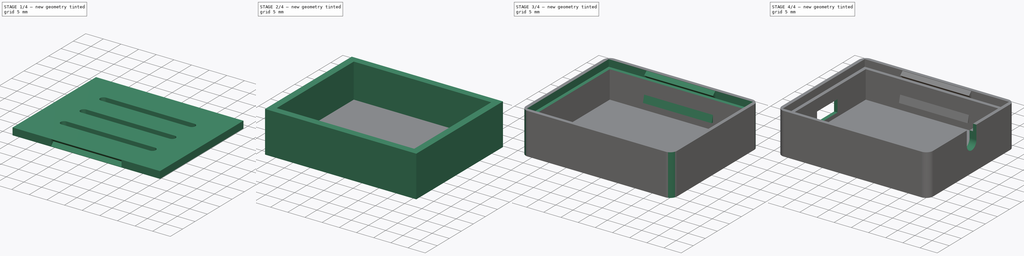
[diagram: build sequence overview — one tinted view per stage of 4, left to right]
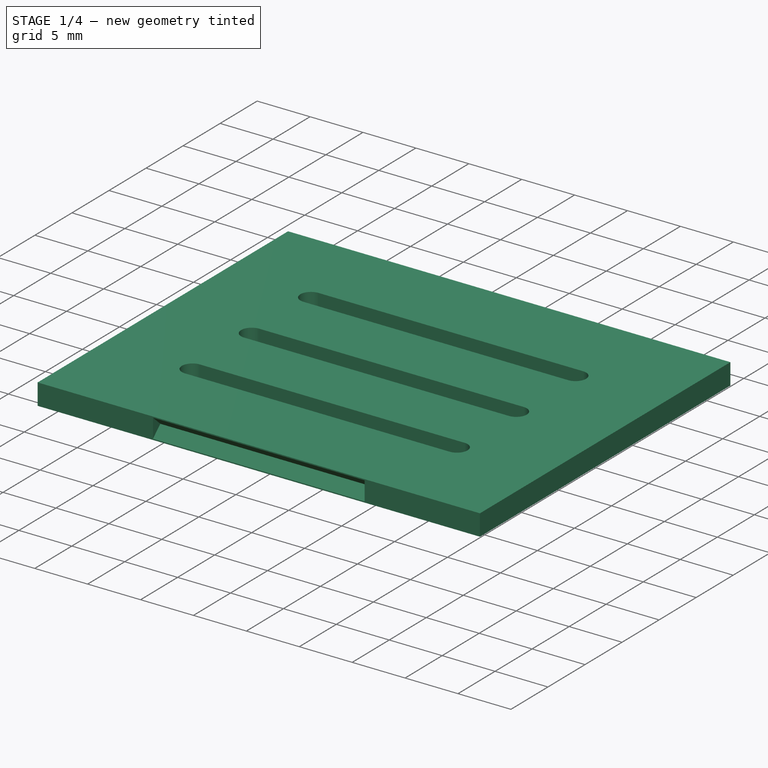
[diagram: stage 1 of 4 — iso view after this stage's code; geometry added in this stage tinted green]
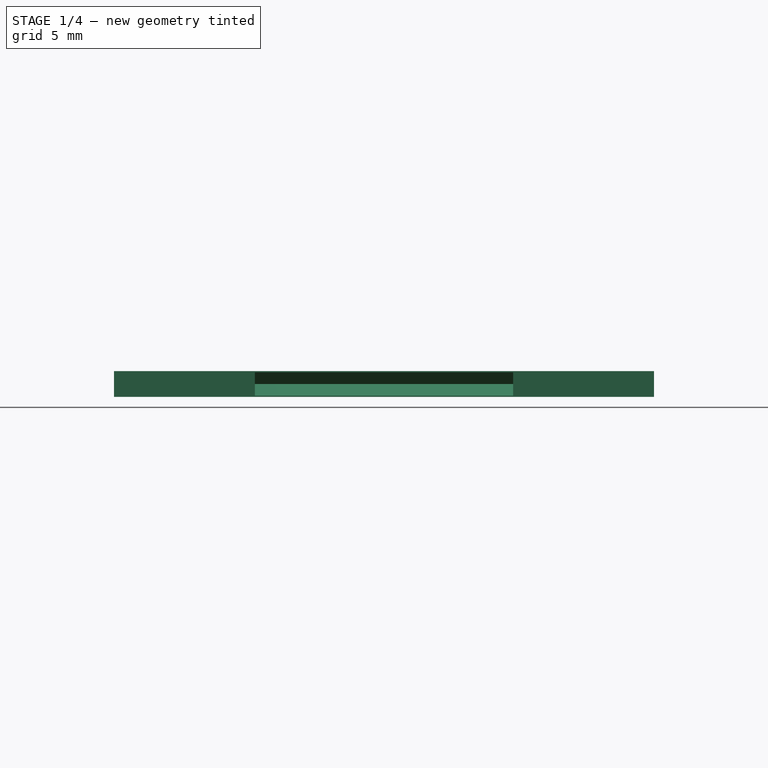
[diagram: stage 1 of 4 — front view after this stage's code; geometry added in this stage tinted green]
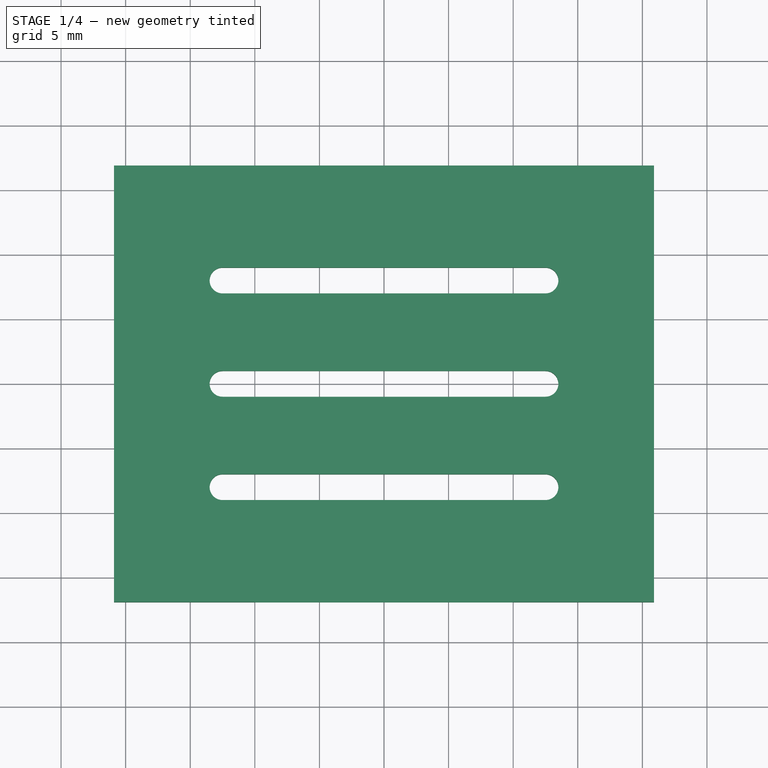
[diagram: stage 1 of 4 — top view after this stage's code; geometry added in this stage tinted green]
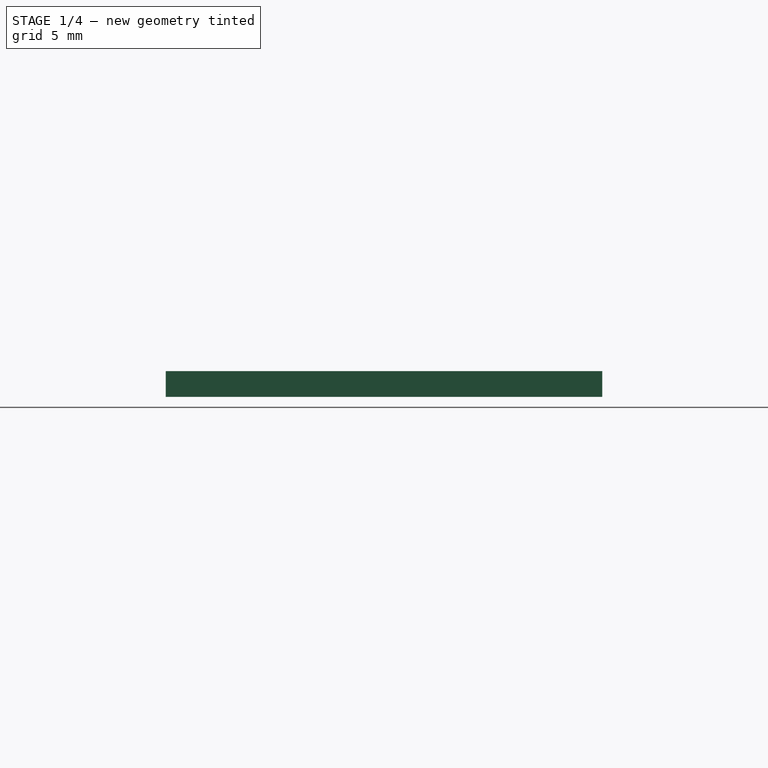
[diagram: stage 1 of 4 — right view after this stage's code; geometry added in this stage tinted green]
FCSTD DOCUMENT  (FreeCAD 1.0R38806 (Git))
Label: Wemos32
License: All rights reserved
LicenseURL: https://en.wikipedia.org/wiki/All_rights_reserved
objects: Sketcher::SketchObject×11, PartDesign::Pocket×6, PartDesign::Pad×5, PartDesign::Body×2, Spreadsheet::Sheet×1, PartDesign::Thickness×1, PartDesign::Fillet×1
note: 63 computed .brp shape members not serialized (recipe doc carries the construction recipe); baked Part::Feature solids carry a one-line shape summary decoded from their .brp

FEATURE [PartDesign::Body] Body
  AllowCompound = false
  Group = -> [Sketch,Pad,Thickness,Fillet,Sketch001,Pocket,Sketch003,Pad001,Sketch004,Pad002,Sketch005,Pocket001,Sketch006,Pocket002,Sketch007,Pocket003]
  Origin = -> Origin
  Tip = -> Pocket003
FEATURE [Sketcher::SketchObject] Sketch008
  ArcFitTolerance = 1e-06
  AttachmentSupport = -> [XY_Plane001]
  FullyConstrained = true
  MakeInternals = false
  MapMode = 5
  expr: Constraints[10] = Spreadsheet.Breite + Spreadsheet.Wand - Spreadsheet.Spiel
  expr: Constraints[9] = Spreadsheet.Laenge + Spreadsheet.Wand - Spreadsheet.Spiel
  sketch-geometry (4):
    g0: LineSegment StartX=-20.9 StartY=16.9 StartZ=0 EndX=-20.9 EndY=-16.9 EndZ=0
    g1: LineSegment StartX=-20.9 StartY=-16.9 StartZ=0 EndX=20.9 EndY=-16.9 EndZ=0
    g2: LineSegment StartX=20.9 StartY=-16.9 StartZ=0 EndX=20.9 EndY=16.9 EndZ=0
    g3: LineSegment StartX=20.9 StartY=16.9 StartZ=0 EndX=-20.9 EndY=16.9 EndZ=0
  constraints (11):
    c: Coincident(g0,g1)
    c: Coincident(g1,g2)
    c: Coincident(g2,g3)
    c: Coincident(g3,g0)
    c: Vertical(g0)
    c: Vertical(g2)
    c: Horizontal(g1)
    c: Horizontal(g3)
    c: Symmetric(g2,g0,g-1)
    c: DistanceX(g3,g3) = 41.8
    c: DistanceY(g0,g0) = 33.8
FEATURE [PartDesign::Pad] Pad003
  Direction = (0,0,1)
  Length = 2
  Length2 = 10
  Profile = -> Sketch008
  ReferenceAxis = -> Sketch008 [N_Axis]
  Suppressed = false
  Type = 0
  expr: Length = Spreadsheet.Wand
FEATURE [Sketcher::SketchObject] Sketch009
  ArcFitTolerance = 1e-06
  AttachmentSupport = -> [XY_Plane001]
  FullyConstrained = true
  MakeInternals = false
  MapMode = 5
  expr: Constraints[24] = Spreadsheet.Langloch
  expr: Constraints[25] = Spreadsheet.Breite / 4
  expr: Constraints[6] = Spreadsheet.Kabelloch
  sketch-geometry (12):
    g0: ArcOfCircle CenterX=-12.5 CenterY=-8 CenterZ=0 NormalX=0 NormalY=0 NormalZ=1 AngleXU=0 Radius=1 StartAngle=1.5708 EndAngle=4.71239
    g1: ArcOfCircle CenterX=12.5 CenterY=-8 CenterZ=0 NormalX=0 NormalY=0 NormalZ=1 AngleXU=0 Radius=1 StartAngle=4.71239 EndAngle=7.85398
    g2: LineSegment StartX=-12.5 StartY=-7 StartZ=0 EndX=12.5 EndY=-7 EndZ=0
    g3: LineSegment StartX=-12.5 StartY=-9 StartZ=0 EndX=12.5 EndY=-9 EndZ=0
    g4: ArcOfCircle CenterX=-12.5 CenterY=8 CenterZ=0 NormalX=0 NormalY=0 NormalZ=1 AngleXU=0 Radius=1 StartAngle=1.5708 EndAngle=4.71239
    g5: ArcOfCircle CenterX=12.5 CenterY=8 CenterZ=0 NormalX=0 NormalY=0 NormalZ=1 AngleXU=0 Radius=1 StartAngle=4.71239 EndAngle=7.85398
    g6: LineSegment StartX=-12.5 StartY=9 StartZ=0 EndX=12.5 EndY=9 EndZ=0
    g7: LineSegment StartX=-12.5 StartY=7 StartZ=0 EndX=12.5 EndY=7 EndZ=0
    g8: ArcOfCircle CenterX=-12.5 CenterY=0 CenterZ=0 NormalX=0 NormalY=0 NormalZ=1 AngleXU=0 Radius=1 StartAngle=1.5708 EndAngle=4.71239
    g9: ArcOfCircle CenterX=12.5 CenterY=0 CenterZ=0 NormalX=0 NormalY=0 NormalZ=1 AngleXU=0 Radius=1 StartAngle=4.71239 EndAngle=7.85398
    g10: LineSegment StartX=-12.5 StartY=1 StartZ=0 EndX=12.5 EndY=1 EndZ=0
    g11: LineSegment StartX=-12.5 StartY=-1 StartZ=0 EndX=12.5 EndY=-1 EndZ=0
  constraints (26):
    c: Tangent(g0,g2) = 1.5708
    c: Tangent(g0,g3) = -1.5708
    c: Tangent(g1,g2) = 1.5708
    c: Tangent(g1,g3) = -1.5708
    c: Equal(g0,g1)
    c: Symmetric(g1,g0,g-2)
    c: Diameter(g1) = 2
    c: Tangent(g4,g6) = 1.5708
    c: Tangent(g4,g7) = -1.5708
    c: Tangent(g5,g6) = 1.5708
    c: Tangent(g5,g7) = -1.5708
    c: Equal(g4,g5)
    c: Symmetric(g5,g4,g-2)
    c: Diameter(g5) = 2
    c: Tangent(g8,g10) = 1.5708
    c: Tangent(g8,g11) = -1.5708
    c: Tangent(g9,g10) = 1.5708
    c: Tangent(g9,g11) = -1.5708
    c: Equal(g8,g9)
    c: Symmetric(g9,g8,g-2)
    c: Diameter(g9) = 2
    c: Vertical(g0,g8)
    c: Symmetric(g4,g0,g-1)
    c: Symmetric(g8,g8,g-1)
    c: DistanceX(g4,g5) = 25
    c: DistanceY(g0,g8) = 8
FEATURE [PartDesign::Pocket] Pocket004
  BaseFeature = -> Pad003
  Direction = (0,0,-1)
  Length = 2
  Length2 = 5
  Profile = -> Sketch009
  ReferenceAxis = -> Sketch009 [N_Axis]
  Reversed = true
  Suppressed = false
  Type = 0
  expr: Length = Spreadsheet.Wand
FEATURE [Sketcher::SketchObject] Sketch010
  ArcFitTolerance = 1e-06
  AttachmentSupport = -> [YZ_Plane001]
  FullyConstrained = true
  MakeInternals = false
  MapMode = 5
  Placement = pos=(0,0,0) rot=(0.57735,0.57735,0.57735;2.0944rad)
  expr: Constraints[13] = Spreadsheet.Wand / 2
  expr: Constraints[14] = Spreadsheet.Wand - Spreadsheet.Spiel
  expr: Constraints[15] = Spreadsheet.Wand / 2
  expr: Constraints[16] = Spreadsheet.Breite + Spreadsheet.Wand - Spreadsheet.Spiel
  sketch-geometry (6):
    g0: LineSegment StartX=-16.9 StartY=1.9 StartZ=0 EndX=-16.9 EndY=0.1 EndZ=0
    g1: LineSegment StartX=-16.9 StartY=0.1 StartZ=0 EndX=-15.9 EndY=1 EndZ=0
    g2: LineSegment StartX=-15.9 StartY=1 StartZ=0 EndX=-16.9 EndY=1.9 EndZ=0
    g3: LineSegment StartX=16.9 StartY=1.9 StartZ=0 EndX=16.9 EndY=0.1 EndZ=0
    g4: LineSegment StartX=16.9 StartY=0.1 StartZ=0 EndX=15.9 EndY=1 EndZ=0
    g5: LineSegment StartX=15.9 StartY=1 StartZ=0 EndX=16.9 EndY=1.9 EndZ=0
  constraints (17):
    c: Vertical(g0)
    c: Coincident(g0,g1)
    c: Coincident(g1,g2)
    c: Coincident(g2,g0)
    c: Vertical(g3)
    c: Coincident(g3,g4)
    c: Coincident(g4,g5)
    c: Coincident(g5,g3)
    c: Equal(g2,g1)
    c: Equal(g4,g5)
    c: Equal(g0,g3)
    c: Equal(g5,g2)
    c: Symmetric(g4,g1,g-2)
    c: DistanceX(g0,g1) = 1
    c: DistanceY(g0,g0) = 1.8
    c: DistanceY(g-1,g1) = 1
    c: DistanceX(g0,g3) = 33.8
FEATURE [PartDesign::Pocket] Pocket005
  BaseFeature = -> Pocket004
  Direction = (-1,0,0)
  Length = 20
  Length2 = 5
  Midplane = true
  Profile = -> Sketch010
  ReferenceAxis = -> Sketch010 [N_Axis]
  Suppressed = false
  Type = 0
  expr: Length = Spreadsheet.Keil
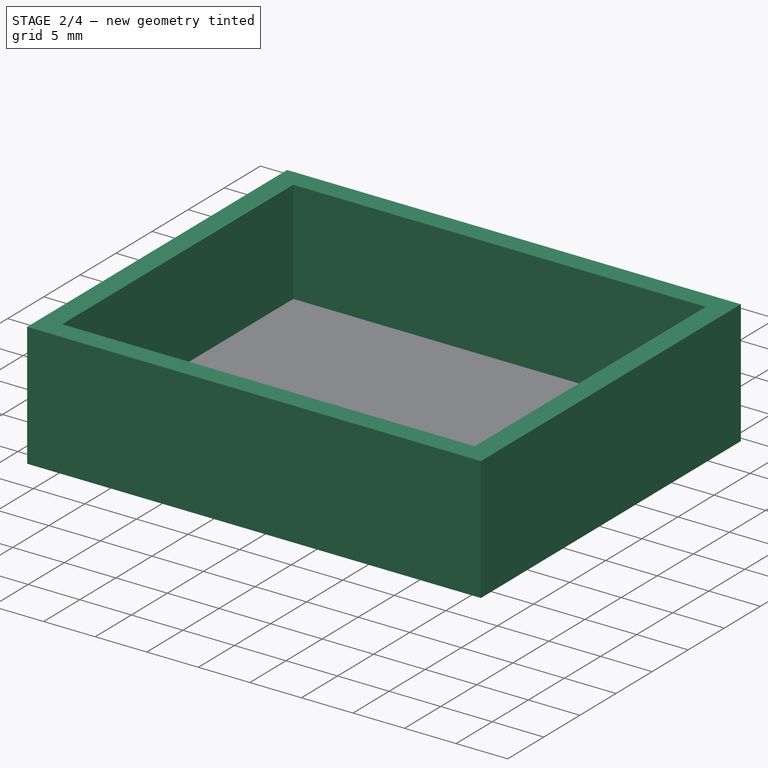
[diagram: stage 2 of 4 — iso view after this stage's code; geometry added in this stage tinted green]
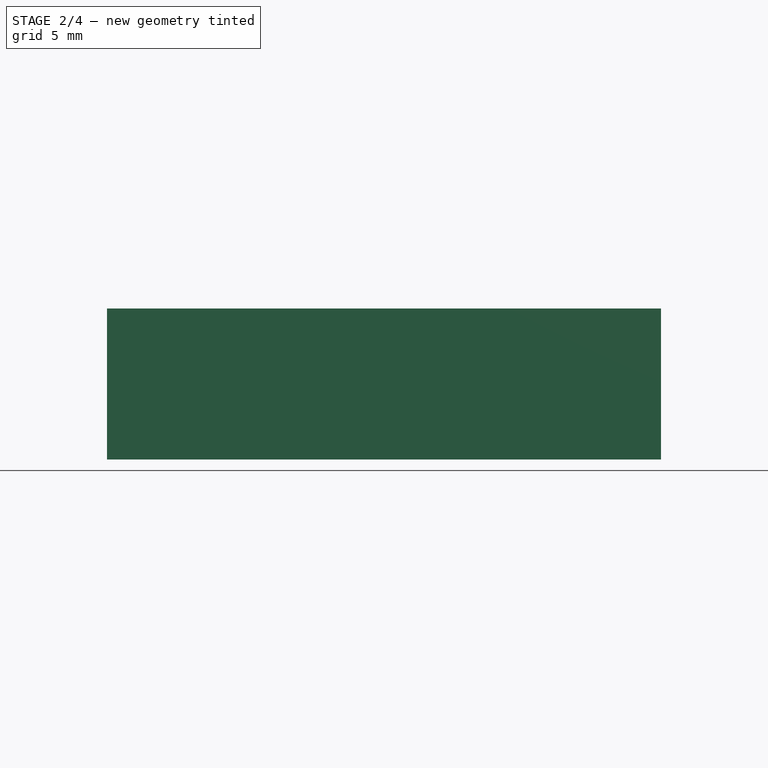
[diagram: stage 2 of 4 — front view after this stage's code; geometry added in this stage tinted green]
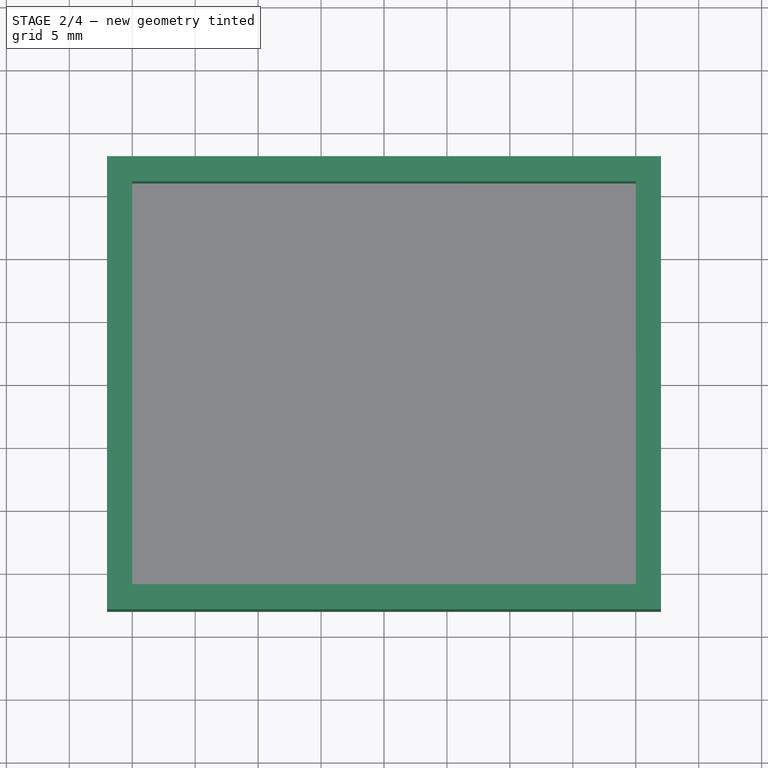
[diagram: stage 2 of 4 — top view after this stage's code; geometry added in this stage tinted green]
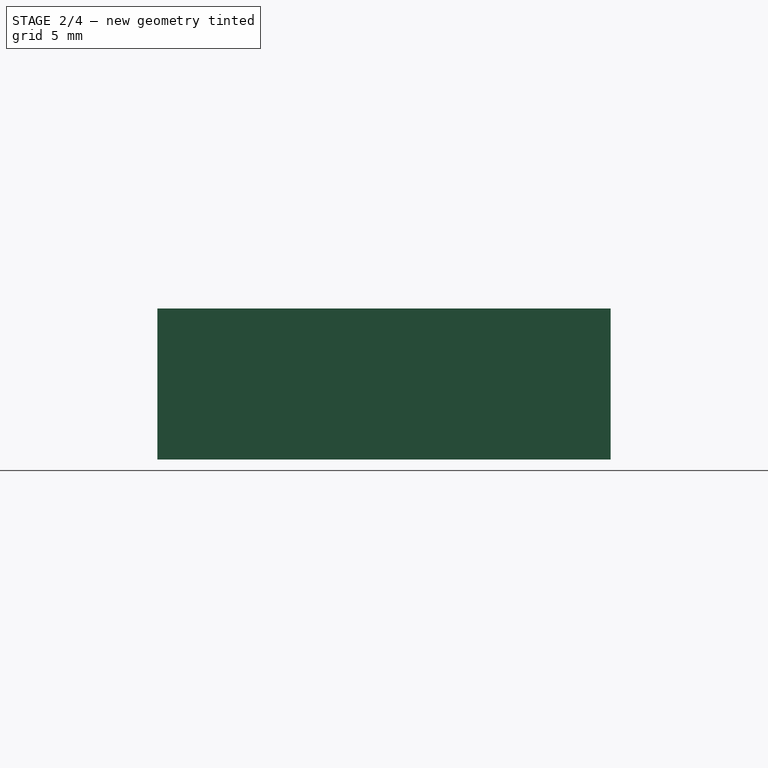
[diagram: stage 2 of 4 — right view after this stage's code; geometry added in this stage tinted green]
FEATURE [Sketcher::SketchObject] Sketch
  ArcFitTolerance = 1e-06
  AttachmentSupport = -> [XY_Plane]
  FullyConstrained = true
  MakeInternals = false
  MapMode = 5
  expr: Constraints[10] = Spreadsheet.Breite + Spreadsheet.Wand * 2
  expr: Constraints[9] = Spreadsheet.Laenge + Spreadsheet.Wand * 2
  sketch-geometry (4):
    g0: LineSegment StartX=-22 StartY=18 StartZ=0 EndX=-22 EndY=-18 EndZ=0
    g1: LineSegment StartX=-22 StartY=-18 StartZ=0 EndX=22 EndY=-18 EndZ=0
    g2: LineSegment StartX=22 StartY=-18 StartZ=0 EndX=22 EndY=18 EndZ=0
    g3: LineSegment StartX=22 StartY=18 StartZ=0 EndX=-22 EndY=18 EndZ=0
  constraints (11):
    c: Coincident(g0,g1)
    c: Coincident(g1,g2)
    c: Coincident(g2,g3)
    c: Coincident(g3,g0)
    c: Vertical(g0)
    c: Vertical(g2)
    c: Horizontal(g1)
    c: Horizontal(g3)
    c: Symmetric(g2,g0,g-1)
    c: DistanceX(g3,g3) = 44
    c: DistanceY(g0,g0) = 36
FEATURE [Spreadsheet::Sheet] Spreadsheet
  cells = A1='Laenge; B1(Laenge)==40 mm; A2='Breite; B2(Breite)==32 mm; A3='Hoehe; B3(Hoehe)==12 mm; A4='Wand; B4(Wand)==2 mm; A5='Rundung; B5(Rundung)==2 mm; A6='UsbH; B6(UsbH)==3.5 mm; A7='UsbL; B7(UsbL)==8.5 mm; A8='Platine; B8(Platine)==1 mm; A9='Kabelloch; B9(Kabelloch)==2 mm; A10='Spiel; B10(Spiel)==0.2 mm; A11='Keil; B11(Keil)==20 mm; A12='KabelAbstand; B12(KabelAbstand)==2 mm; A13='Langloch; B13(Langloch)==25 mm
FEATURE [PartDesign::Pad] Pad
  Direction = (0,0,1)
  Length = 12
  Length2 = 10
  Profile = -> Sketch
  ReferenceAxis = -> Sketch [N_Axis]
  Refine = true
  Suppressed = false
  Type = 0
  expr: Length = Spreadsheet.Hoehe
FEATURE [PartDesign::Thickness] Thickness
  Base = -> Pad [Face6]
  BaseFeature = -> Pad
  Intersection = false
  Join = 0
  Mode = 0
  Refine = true
  Reversed = true
  SupportTransform = false
  Suppressed = false
  Value = 2
  expr: Value = Spreadsheet.Wand
FEATURE [Sketcher::SketchObject] Sketch011
  ArcFitTolerance = 1e-06
  AttachmentSupport = -> [XY_Plane001]
  FullyConstrained = true
  MakeInternals = false
  MapMode = 5
  expr: Constraints[10] = (Spreadsheet.Laenge + Spreadsheet.Wand - Spreadsheet.Spiel) / 2
  expr: Constraints[8] = Spreadsheet.Kabelloch * 2 - Spreadsheet.Spiel
  expr: Constraints[9] = Spreadsheet.Wand / 2
  sketch-geometry (4):
    g0: LineSegment StartX=20.9 StartY=1.9 StartZ=0 EndX=20.9 EndY=-1.9 EndZ=0
    g1: LineSegment StartX=20.9 StartY=-1.9 StartZ=0 EndX=21.9 EndY=-1.9 EndZ=0
    g2: LineSegment StartX=21.9 StartY=-1.9 StartZ=0 EndX=21.9 EndY=1.9 EndZ=0
    g3: LineSegment StartX=21.9 StartY=1.9 StartZ=0 EndX=20.9 EndY=1.9 EndZ=0
  constraints (11):
    c: Coincident(g0,g1)
    c: Coincident(g1,g2)
    c: Coincident(g2,g3)
    c: Coincident(g3,g0)
    c: Vertical(g2)
    c: Horizontal(g1)
    c: Horizontal(g3)
    c: Symmetric(g0,g0,g-1)
    c: DistanceY(g1,g2) = 3.8
    c: DistanceX(g0,g2) = 1
    c: DistanceX(g-1,g0) = 20.9
FEATURE [PartDesign::Pad] Pad004
  BaseFeature = -> Pocket005
  Direction = (0,0,1)
  Length = 2
  Length2 = 10
  Profile = -> Sketch011
  ReferenceAxis = -> Sketch011 [N_Axis]
  Suppressed = false
  Type = 0
  expr: Length = Spreadsheet.Wand
FEATURE [PartDesign::Body] Body001  label="Deckel"
  AllowCompound = false
  Group = -> [Sketch008,Pad003,Sketch009,Pocket004,Sketch010,Pocket005,Sketch011,Pad004]
  Origin = -> Origin001
  Placement = pos=(0,0,24) rot=(0,0,1;0rad)
  Tip = -> Pad004
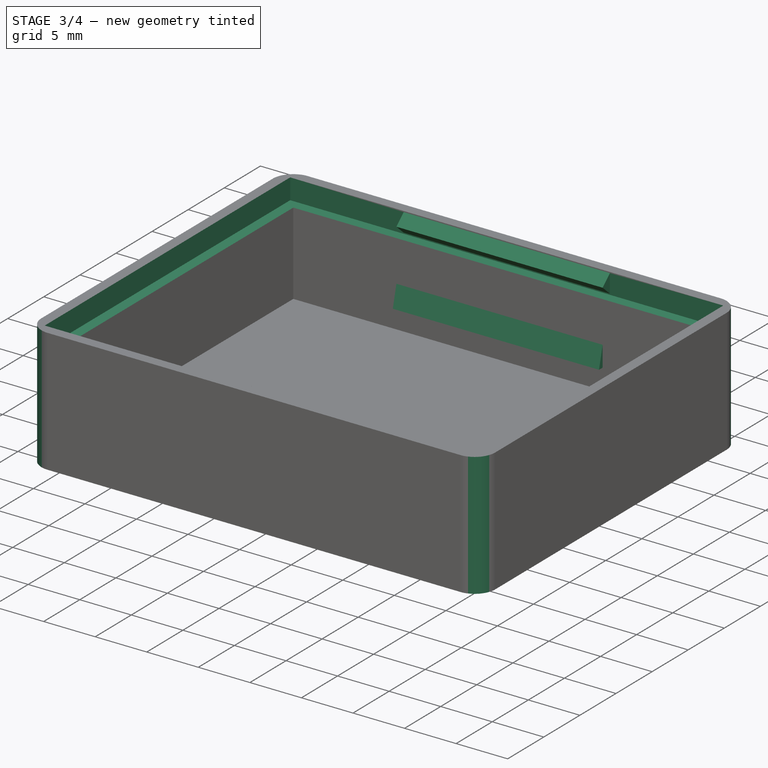
[diagram: stage 3 of 4 — iso view after this stage's code; geometry added in this stage tinted green]
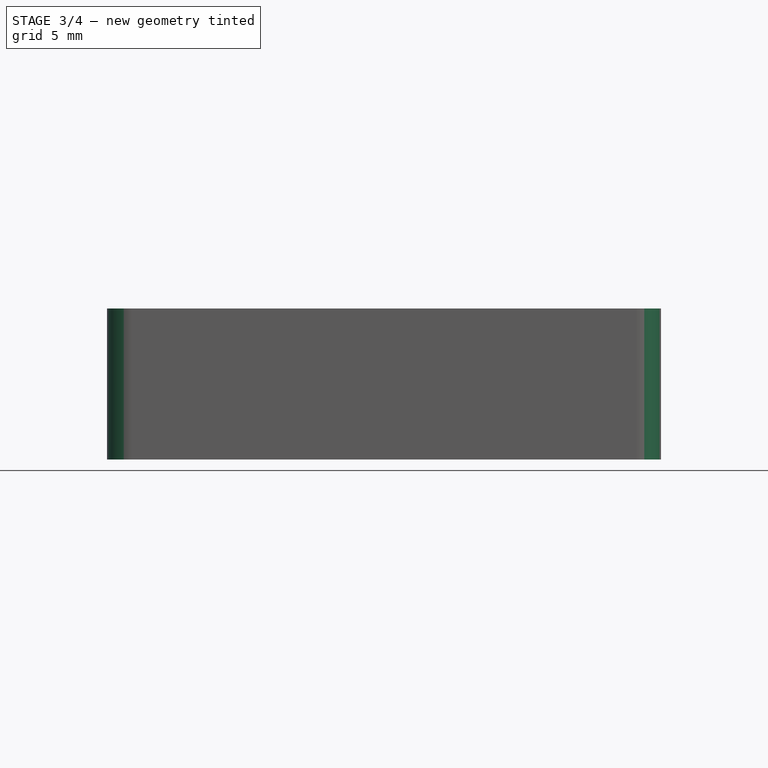
[diagram: stage 3 of 4 — front view after this stage's code; geometry added in this stage tinted green]
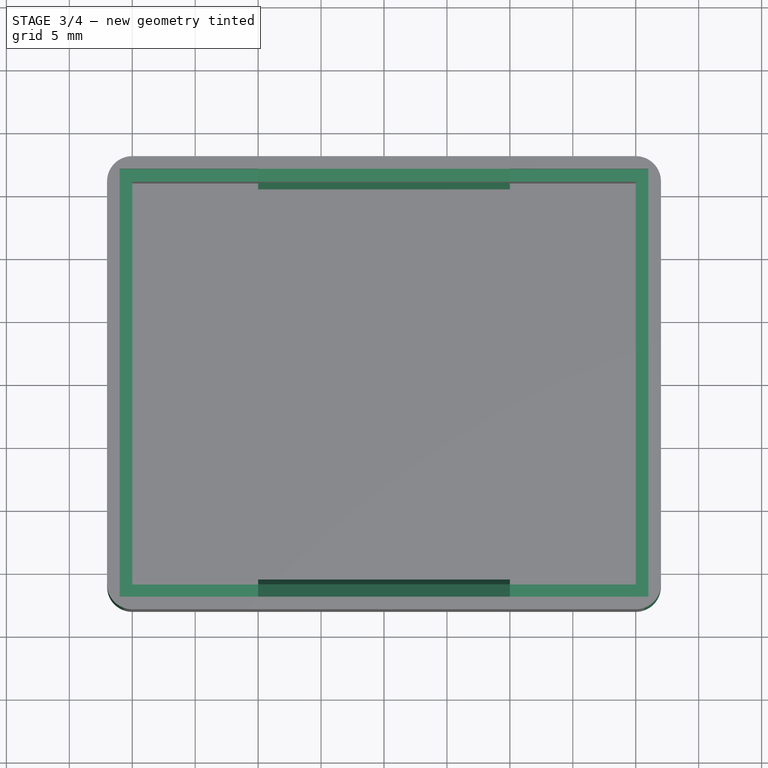
[diagram: stage 3 of 4 — top view after this stage's code; geometry added in this stage tinted green]
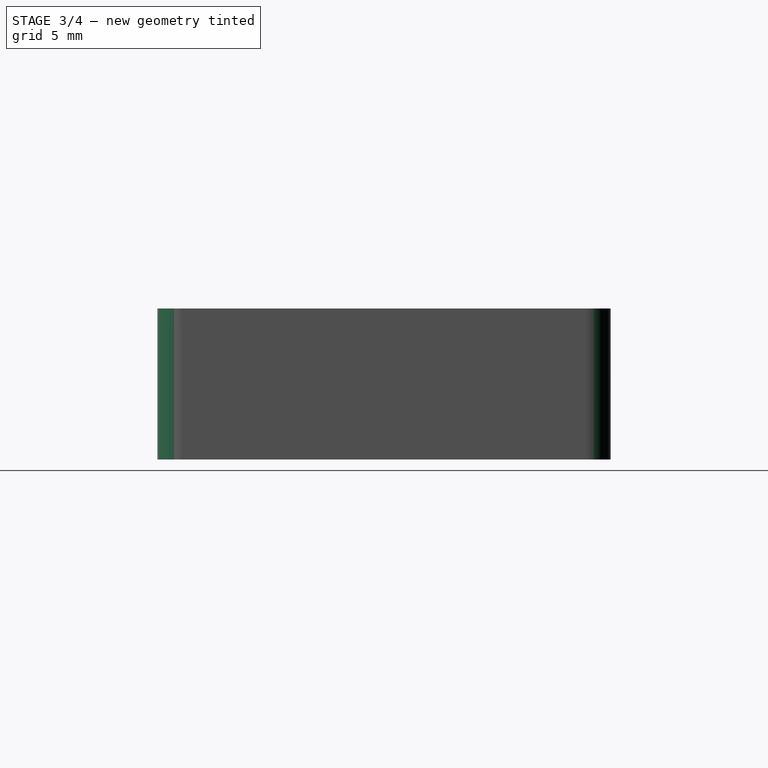
[diagram: stage 3 of 4 — right view after this stage's code; geometry added in this stage tinted green]
FEATURE [PartDesign::Fillet] Fillet
  Base = -> Thickness [Edge1,Edge2,Edge5,Edge8]
  BaseFeature = -> Thickness
  Radius = 2
  Refine = true
  SupportTransform = false
  Suppressed = false
  UseAllEdges = false
  expr: Radius = Spreadsheet.Rundung
FEATURE [Sketcher::SketchObject] Sketch001
  ArcFitTolerance = 1e-06
  AttachmentOffset = pos=(0,0,12) rot=(0,0,1;0rad)
  AttachmentSupport = -> [XY_Plane]
  FullyConstrained = true
  MakeInternals = false
  MapMode = 5
  Placement = pos=(0,0,12) rot=(0,0,1;0rad)
  expr: .AttachmentOffset.Base.z = Spreadsheet.Hoehe
  expr: Constraints[10] = Spreadsheet.Breite + Spreadsheet.Wand
  expr: Constraints[9] = Spreadsheet.Laenge + Spreadsheet.Wand
  sketch-geometry (4):
    g0: LineSegment StartX=-21 StartY=17 StartZ=0 EndX=-21 EndY=-17 EndZ=0
    g1: LineSegment StartX=-21 StartY=-17 StartZ=0 EndX=21 EndY=-17 EndZ=0
    g2: LineSegment StartX=21 StartY=-17 StartZ=0 EndX=21 EndY=17 EndZ=0
    g3: LineSegment StartX=21 StartY=17 StartZ=0 EndX=-21 EndY=17 EndZ=0
  constraints (11):
    c: Coincident(g0,g1)
    c: Coincident(g1,g2)
    c: Coincident(g2,g3)
    c: Coincident(g3,g0)
    c: Vertical(g0)
    c: Vertical(g2)
    c: Horizontal(g1)
    c: Horizontal(g3)
    c: Symmetric(g2,g0,g-1)
    c: Distance(g3,g3) = 42
    c: DistanceY(g0,g0) = 34
FEATURE [PartDesign::Pocket] Pocket
  BaseFeature = -> Fillet
  Direction = (0,0,-1)
  Length = 2
  Length2 = 5
  Profile = -> Sketch001
  ReferenceAxis = -> Sketch001 [N_Axis]
  Suppressed = false
  Type = 0
  expr: Length = Spreadsheet.Wand
FEATURE [Sketcher::SketchObject] Sketch003
  ArcFitTolerance = 1e-06
  AttachmentSupport = -> [YZ_Plane]
  FullyConstrained = true
  MakeInternals = false
  MapMode = 5
  Placement = pos=(0,0,0) rot=(0.57735,0.57735,0.57735;2.0944rad)
  expr: Constraints[10] = Spreadsheet.Hoehe - Spreadsheet.Spiel / 2
  expr: Constraints[7] = Spreadsheet.Breite + Spreadsheet.Wand
  expr: Constraints[8] = Spreadsheet.Wand - Spreadsheet.Spiel
  expr: Constraints[9] = Spreadsheet.Wand / 2
  sketch-geometry (6):
    g0: LineSegment StartX=-17 StartY=11.9 StartZ=0 EndX=-17 EndY=10.1 EndZ=0
    g1: LineSegment StartX=17 StartY=10.1 StartZ=0 EndX=17 EndY=11.9 EndZ=0
    g2: LineSegment StartX=17 StartY=11.9 StartZ=0 EndX=16 EndY=11 EndZ=0
    g3: LineSegment StartX=16 StartY=11 StartZ=0 EndX=17 EndY=10.1 EndZ=0
    g4: LineSegment StartX=-17 StartY=11.9 StartZ=0 EndX=-16 EndY=11 EndZ=0
    g5: LineSegment StartX=-16 StartY=11 StartZ=0 EndX=-17 EndY=10.1 EndZ=0
  constraints (17):
    c: Vertical(g0)
    c: Vertical(g1)
    c: Coincident(g1,g2)
    c: Coincident(g2,g3)
    c: Coincident(g3,g1)
    c: Equal(g2,g3)
    c: Equal(g1,g0)
    c: DistanceX(g0,g1) = 34
    c: DistanceY(g0,g0) = 1.8
    c: DistanceX(g2,g1) = 1
    c: DistanceY(g-1,g0) = 11.9
    c: Coincident(g4,g0)
    c: Coincident(g5,g4)
    c: Coincident(g5,g0)
    c: Equal(g5,g4)
    c: Equal(g2,g4)
    c: Symmetric(g4,g2,g-2)
FEATURE [PartDesign::Pad] Pad001
  BaseFeature = -> Pocket
  Direction = (1,0,0)
  Length = 20
  Length2 = 10
  Midplane = true
  Profile = -> Sketch003
  ReferenceAxis = -> Sketch003 [N_Axis]
  Suppressed = false
  Type = 0
  expr: Length = Spreadsheet.Keil
FEATURE [Sketcher::SketchObject] Sketch004
  ArcFitTolerance = 1e-06
  AttachmentSupport = -> [YZ_Plane]
  FullyConstrained = true
  MakeInternals = false
  MapMode = 5
  Placement = pos=(0,0,0) rot=(0.57735,0.57735,0.57735;2.0944rad)
  expr: Constraints[12] = Spreadsheet.Wand / 4
  expr: Constraints[13] = Spreadsheet.Wand
  expr: Constraints[15] = Spreadsheet.Wand + Spreadsheet.Platine + Spreadsheet.Spiel * 5
  expr: Constraints[16] = Spreadsheet.Breite
  sketch-geometry (6):
    g0: LineSegment StartX=-16 StartY=6 StartZ=0 EndX=-16 EndY=4 EndZ=0
    g1: LineSegment StartX=-16 StartY=4 StartZ=0 EndX=-15.5 EndY=4 EndZ=0
    g2: LineSegment StartX=-15.5 StartY=4 StartZ=0 EndX=-16 EndY=6 EndZ=0
    g3: LineSegment StartX=16 StartY=6 StartZ=0 EndX=16 EndY=4 EndZ=0
    g4: LineSegment StartX=16 StartY=4 StartZ=0 EndX=15.5 EndY=4 EndZ=0
    g5: LineSegment StartX=15.5 StartY=4 StartZ=0 EndX=16 EndY=6 EndZ=0
  constraints (17):
    c: Vertical(g0)
    c: Coincident(g0,g1)
    c: Horizontal(g1)
    c: Coincident(g1,g2)
    c: Coincident(g2,g0)
    c: Vertical(g3)
    c: Coincident(g3,g4)
    c: Horizontal(g4)
    c: Coincident(g4,g5)
    c: Coincident(g5,g3)
    c: Equal(g0,g3)
    c: Equal(g1,g4)
    c: DistanceX(g1,g1) = 0.5
    c: DistanceY(g0,g0) = 2
    c: Symmetric(g0,g3,g-2)
    c: DistanceY(g-1,g1) = 4
    c: DistanceX(g0,g3) = 32
FEATURE [PartDesign::Pad] Pad002
  BaseFeature = -> Pad001
  Direction = (1,0,0)
  Length = 20
  Length2 = 10
  Midplane = true
  Profile = -> Sketch004
  ReferenceAxis = -> Sketch004 [N_Axis]
  Suppressed = false
  Type = 0
  expr: Length = Spreadsheet.Keil
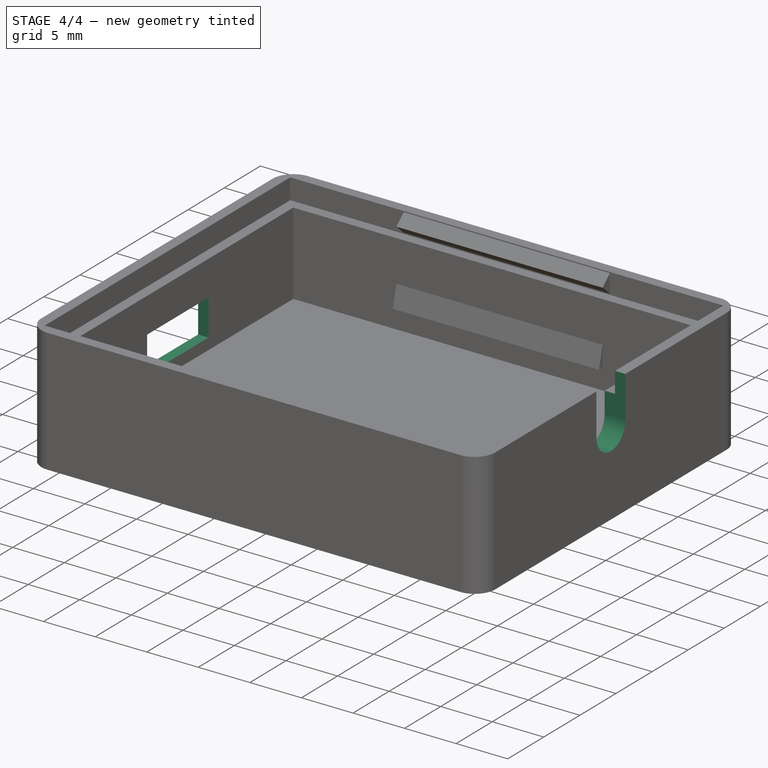
[diagram: stage 4 of 4 — iso view after this stage's code; geometry added in this stage tinted green]
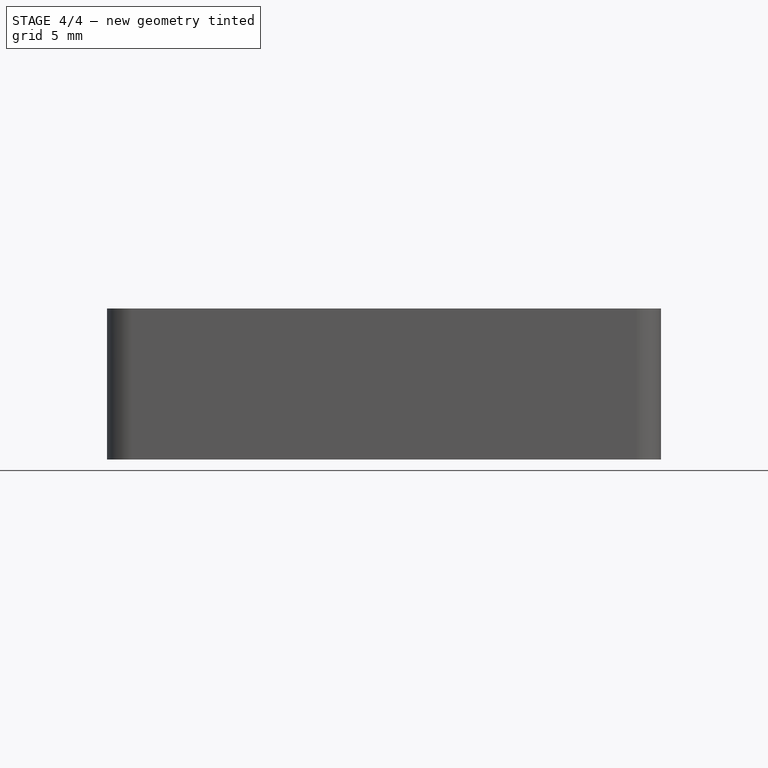
[diagram: stage 4 of 4 — front view after this stage's code; geometry added in this stage tinted green]
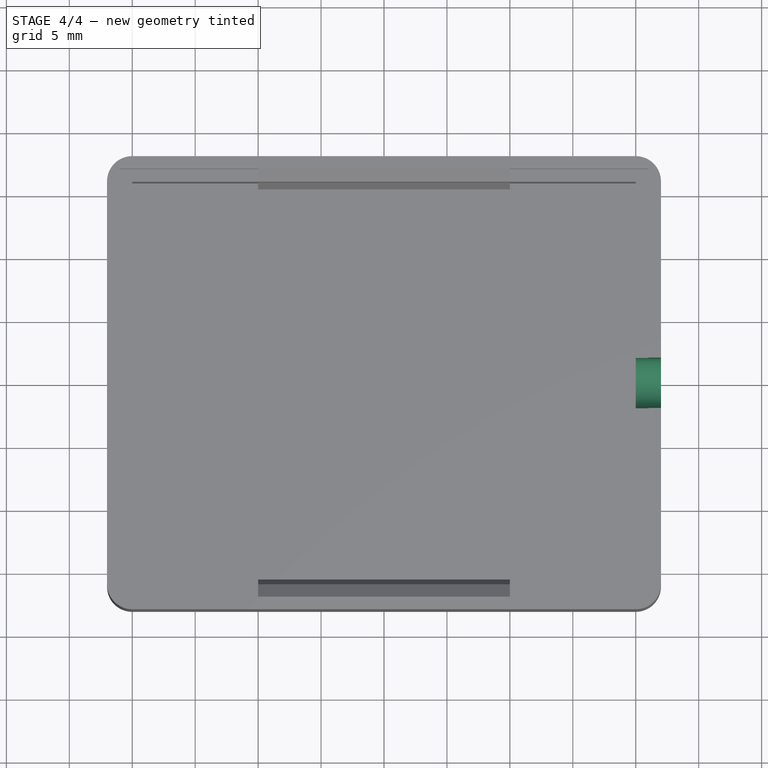
[diagram: stage 4 of 4 — top view after this stage's code; geometry added in this stage tinted green]
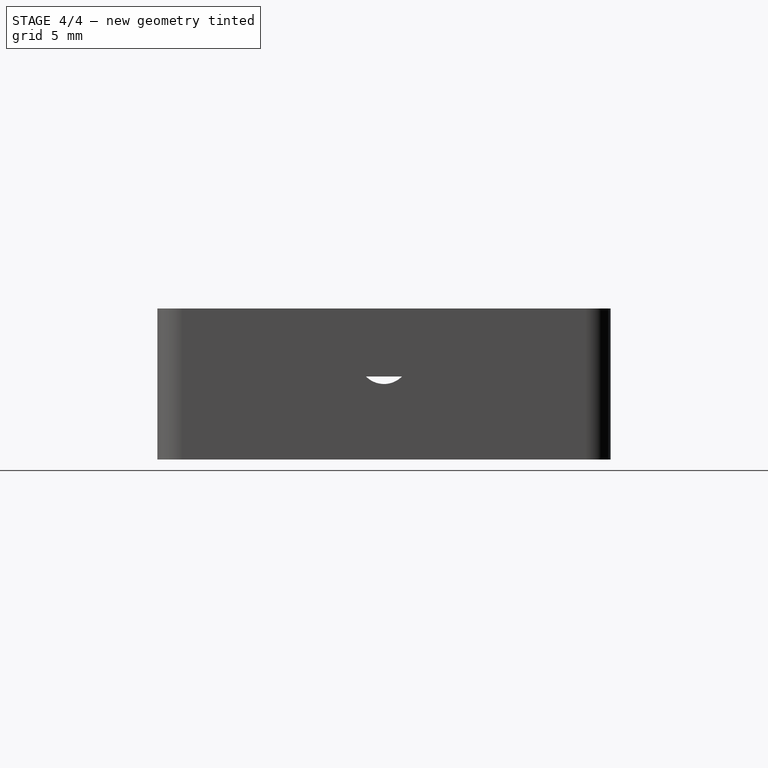
[diagram: stage 4 of 4 — right view after this stage's code; geometry added in this stage tinted green]
FEATURE [Sketcher::SketchObject] Sketch005
  ArcFitTolerance = 1e-06
  AttachmentSupport = -> [Pad002]
  FullyConstrained = true
  MakeInternals = false
  MapMode = 5
  Placement = pos=(-22,0,0) rot=(0.57735,-0.57735,-0.57735;2.0944rad)
  expr: Constraints[10] = Spreadsheet.UsbL
  expr: Constraints[7] = Spreadsheet.Wand + Spreadsheet.Platine + Spreadsheet.Spiel / 2
  expr: Constraints[9] = Spreadsheet.UsbH
  sketch-geometry (4):
    g0: LineSegment StartX=-4.25 StartY=6.6 StartZ=0 EndX=-4.25 EndY=3.1 EndZ=0
    g1: LineSegment StartX=-4.25 StartY=3.1 StartZ=0 EndX=4.25 EndY=3.1 EndZ=0
    g2: LineSegment StartX=4.25 StartY=3.1 StartZ=0 EndX=4.25 EndY=6.6 EndZ=0
    g3: LineSegment StartX=4.25 StartY=6.6 StartZ=0 EndX=-4.25 EndY=6.6 EndZ=0
  constraints (11):
    c: Coincident(g0,g1)
    c: Coincident(g1,g2)
    c: Coincident(g2,g3)
    c: Coincident(g3,g0)
    c: Vertical(g0)
    c: Vertical(g2)
    c: Horizontal(g1)
    c: DistanceY(g-1,g1) = 3.1
    c: Symmetric(g2,g0,g-2)
    c: Distance(g0,g0) = 3.5
    c: Distance(g3,g3) = 8.5
FEATURE [PartDesign::Pocket] Pocket001
  BaseFeature = -> Pad002
  Direction = (1,0,0)
  Length = 5
  Length2 = 5
  Profile = -> Sketch005
  ReferenceAxis = -> Sketch005 [N_Axis]
  Suppressed = false
  Type = 2
FEATURE [Sketcher::SketchObject] Sketch006
  ArcFitTolerance = 1e-06
  AttachmentSupport = -> [Pocket001]
  ExternalGeometry = -> [Pocket001]
  FullyConstrained = true
  MakeInternals = false
  MapMode = 5
  Placement = pos=(-22,0,0) rot=(0.57735,-0.57735,-0.57735;2.0944rad)
  expr: Constraints[4] = Spreadsheet.UsbH + Spreadsheet.KabelAbstand * 2
  expr: Constraints[5] = Spreadsheet.UsbL + Spreadsheet.KabelAbstand * 2
  sketch-geometry (12):
    g0: LineSegment StartX=-6.25 StartY=6.6 StartZ=0 EndX=-6.25 EndY=3.1 EndZ=0
    g1: LineSegment StartX=-4.25 StartY=1.1 StartZ=0 EndX=4.25 EndY=1.1 EndZ=0
    g2: LineSegment StartX=6.25 StartY=3.1 StartZ=0 EndX=6.25 EndY=6.6 EndZ=0
    g3: LineSegment StartX=4.25 StartY=8.6 StartZ=0 EndX=-4.25 EndY=8.6 EndZ=0
    g4: ArcOfCircle CenterX=-4.25 CenterY=6.6 CenterZ=0 NormalX=0 NormalY=0 NormalZ=1 AngleXU=0 Radius=2 StartAngle=1.5708 EndAngle=3.14159
    g5: GeomPoint [constr] X=-6.25 Y=8.6 Z=0
    g6: ArcOfCircle CenterX=-4.25 CenterY=3.1 CenterZ=0 NormalX=0 NormalY=0 NormalZ=1 AngleXU=0 Radius=2 StartAngle=3.14159 EndAngle=4.71239
    g7: GeomPoint [constr] X=-6.25 Y=1.1 Z=0
    g8: ArcOfCircle CenterX=4.25 CenterY=3.1 CenterZ=0 NormalX=0 NormalY=0 NormalZ=1 AngleXU=0 Radius=2 StartAngle=4.71239 EndAngle=6.28319
    g9: GeomPoint [constr] X=6.25 Y=1.1 Z=0
    g10: ArcOfCircle CenterX=4.25 CenterY=6.6 CenterZ=0 NormalX=0 NormalY=0 NormalZ=1 AngleXU=0 Radius=2 StartAngle=0 EndAngle=1.5708
    g11: GeomPoint [constr] X=6.25 Y=8.6 Z=0
  constraints (26):
    c: Vertical(g0)
    c: Vertical(g2)
    c: Horizontal(g1)
    c: Symmetric(g11,g5,g-2)
    c: DistanceY(g7,g5) = 7.5
    c: DistanceX(g5,g11) = 12.5
    c: PointOnObject(g5,g3)
    c: PointOnObject(g5,g0)
    c: Tangent(g3,g4) = -1.5708
    c: Tangent(g0,g4) = -1.5708
    c: PointOnObject(g7,g1)
    c: PointOnObject(g7,g0)
    c: Tangent(g1,g6) = -1.5708
    c: Tangent(g0,g6) = -1.5708
    c: PointOnObject(g9,g1)
    c: PointOnObject(g9,g2)
    c: Tangent(g1,g8) = -1.5708
    c: Tangent(g2,g8) = -1.5708
    c: PointOnObject(g11,g3)
    c: PointOnObject(g11,g2)
    c: Tangent(g3,g10) = -1.5708
    c: Tangent(g2,g10) = -1.5708
    c: Equal(g4,g10)
    c: Equal(g10,g8)
    c: Equal(g8,g6)
    c: Coincident(g4,g-3)
FEATURE [PartDesign::Pocket] Pocket002
  BaseFeature = -> Pocket001
  Direction = (1,0,0)
  Length = 1
  Length2 = 5
  Profile = -> Sketch006
  ReferenceAxis = -> Sketch006 [N_Axis]
  Suppressed = false
  Type = 0
  expr: Length = Spreadsheet.Wand / 2
FEATURE [Sketcher::SketchObject] Sketch007
  ArcFitTolerance = 1e-06
  AttachmentSupport = -> [Pocket002]
  FullyConstrained = true
  MakeInternals = false
  MapMode = 5
  Placement = pos=(22,0,0) rot=(0.57735,0.57735,0.57735;2.0944rad)
  expr: Constraints[6] = Spreadsheet.Wand * 2
  expr: Constraints[7] = Spreadsheet.Kabelloch * 2
  expr: Constraints[8] = Spreadsheet.Hoehe
  sketch-geometry (4):
    g0: LineSegment StartX=-2 StartY=12 StartZ=0 EndX=2 EndY=12 EndZ=0
    g1: LineSegment StartX=2 StartY=12 StartZ=0 EndX=2 EndY=8 EndZ=0
    g2: LineSegment StartX=-2 StartY=12 StartZ=0 EndX=-2 EndY=8 EndZ=0
    g3: ArcOfCircle CenterX=0 CenterY=8 CenterZ=0 NormalX=0 NormalY=0 NormalZ=1 AngleXU=0 Radius=2 StartAngle=3.14159 EndAngle=6.28319
  constraints (11):
    c: Coincident(g0,g1)
    c: Vertical(g1)
    c: Coincident(g0,g2)
    c: Vertical(g2)
    c: Symmetric(g0,g0,g-2)
    c: Equal(g2,g1)
    c: DistanceY(g2,g2) = 4
    c: DistanceX(g0,g0) = 4
    c: DistanceY(g-1,g0) = 12
    c: Coincident(g3,g1)
    c: Tangent(g3,g2) = -1.5708
FEATURE [PartDesign::Pocket] Pocket003
  BaseFeature = -> Pocket002
  Direction = (-1,0,0)
  Length = 2
  Length2 = 5
  Profile = -> Sketch007
  ReferenceAxis = -> Sketch007 [N_Axis]
  Suppressed = false
  Type = 0
  expr: Length = Spreadsheet.Wand
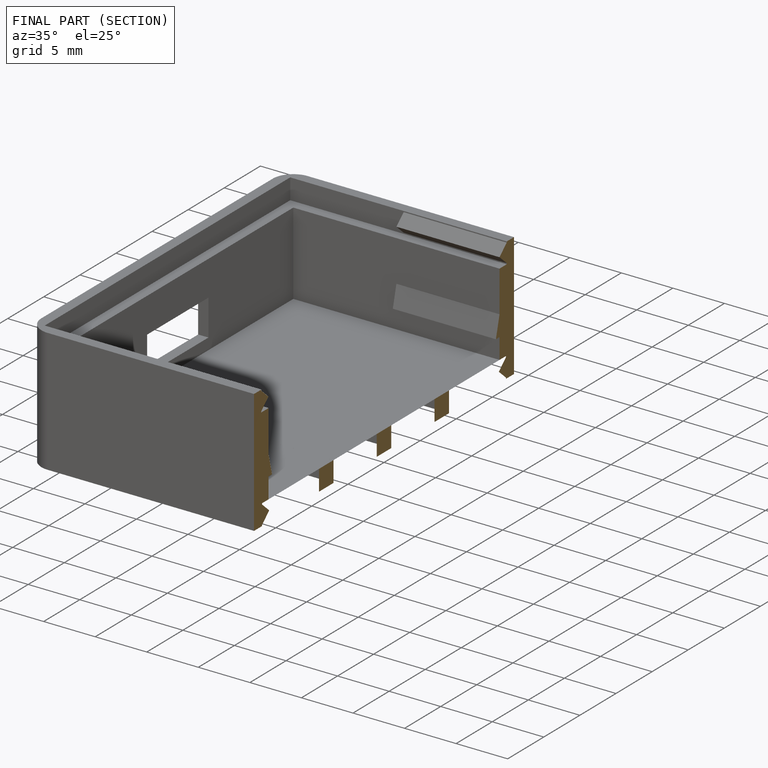
[diagram: finished part — half-section view (interior)]
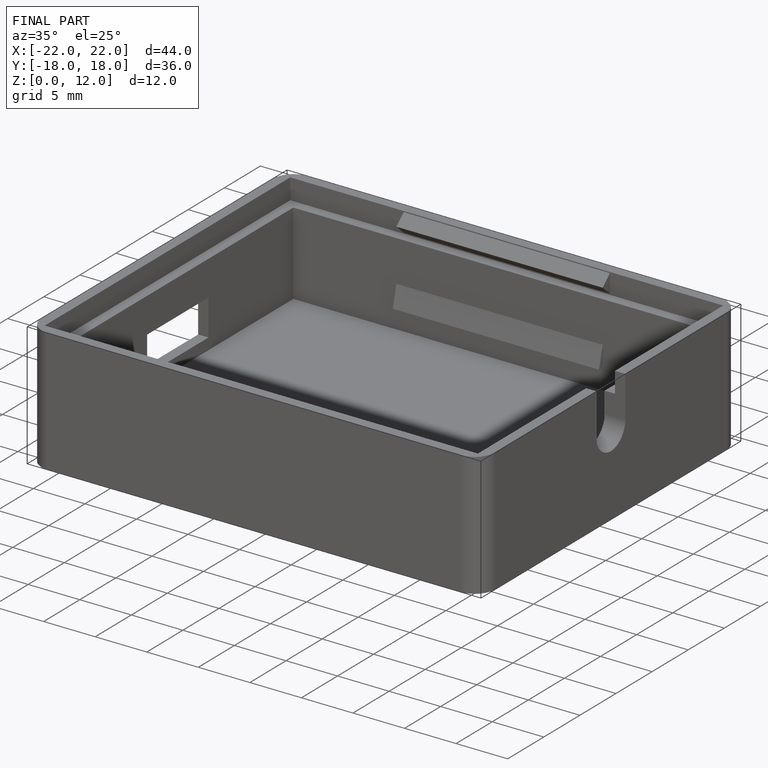
[diagram: finished part — iso view with bounding-box wireframe]
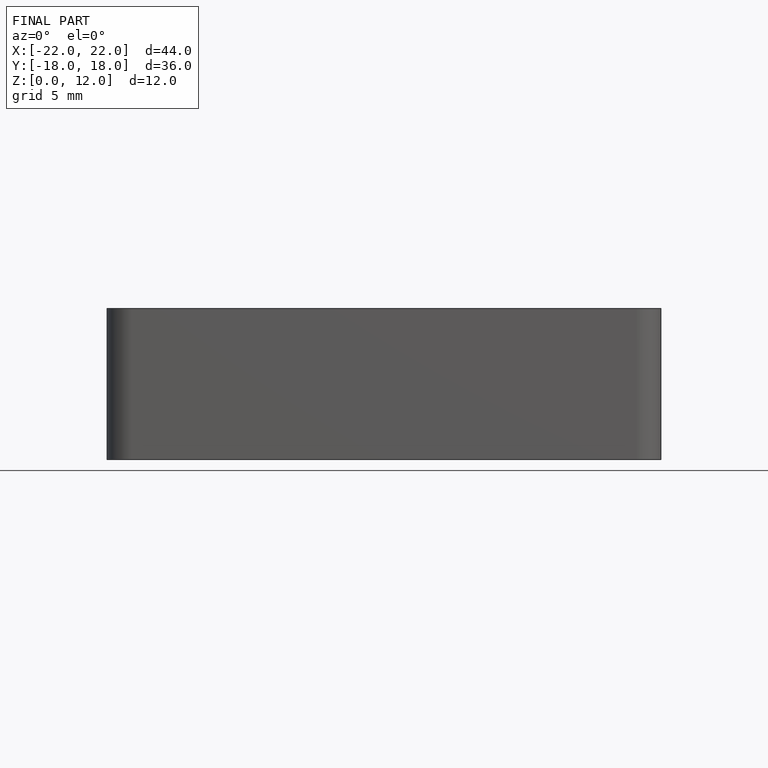
[diagram: finished part — front view with bounding-box wireframe]
